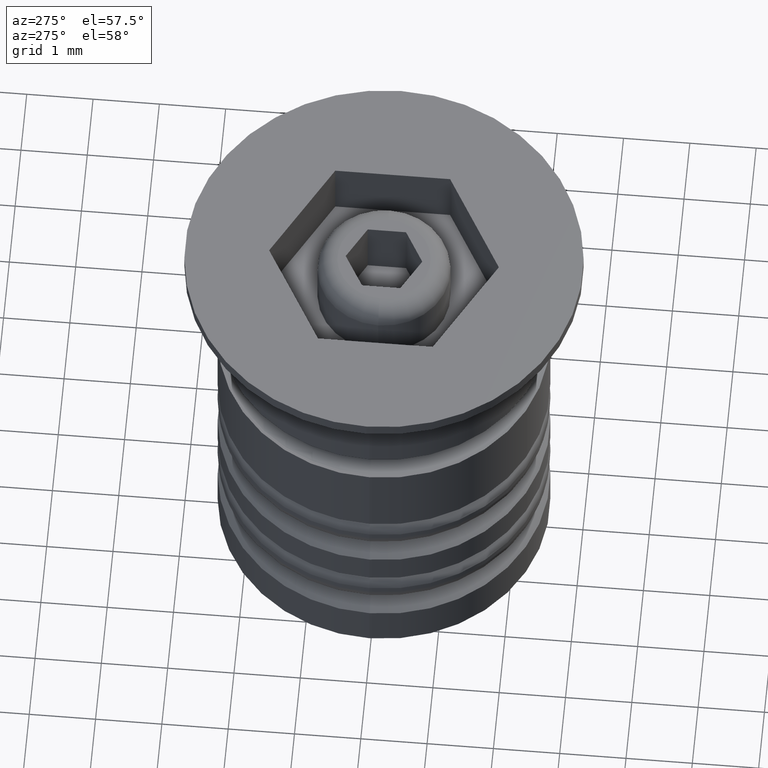
[diagram: clean part render]
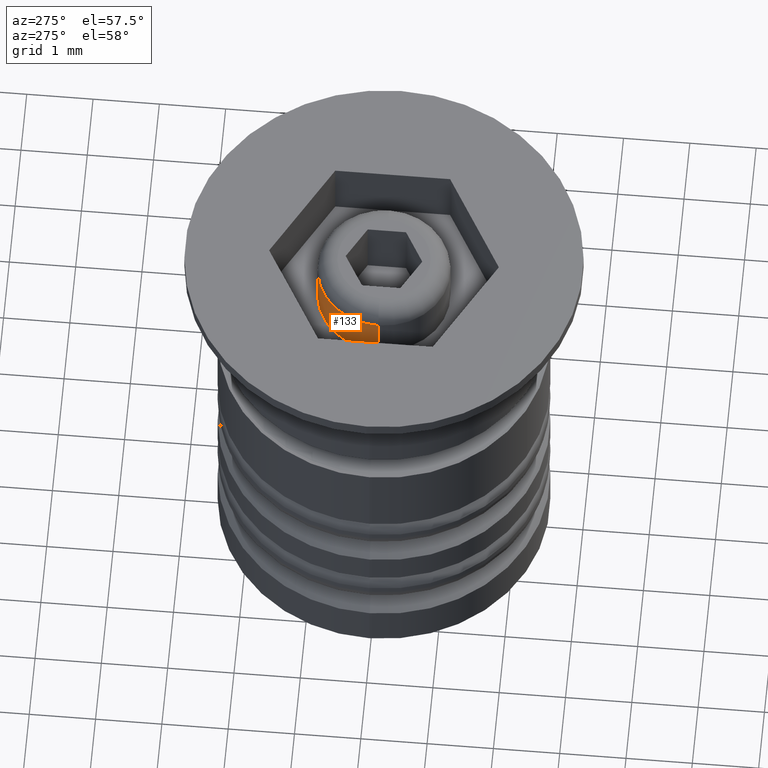
[diagram: same view with one face highlighted and labeled with its STEP entity id]
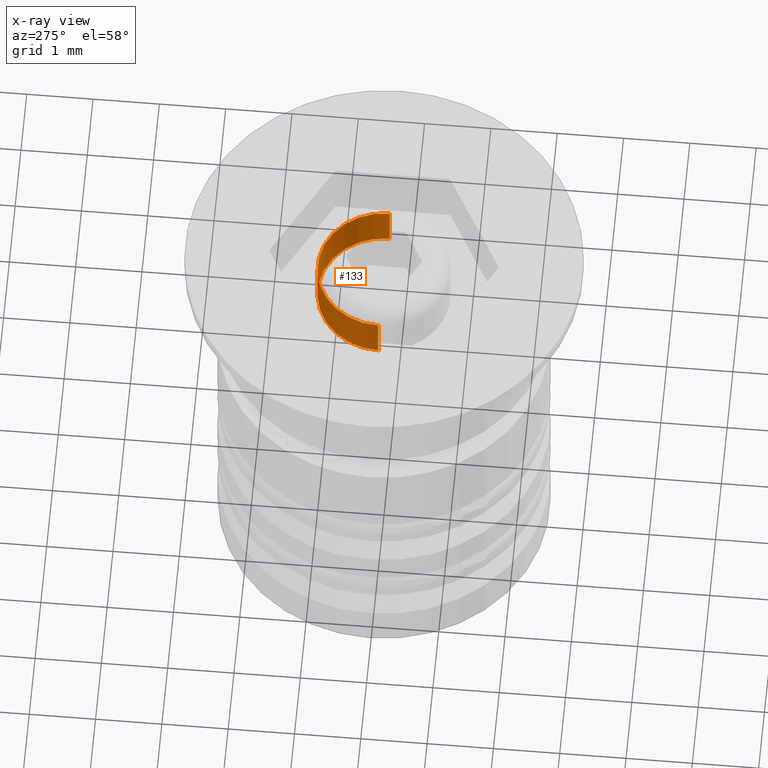
[diagram: x-ray of the same camera — body ghosted, the highlighted face saturated]
A machine part, auxiliary view. The second image highlights one B-rep face of the part: STEP entity #133.
The next image is the same camera in x-ray: the body ghosted, the highlighted face saturated — about 0% of this face is hidden behind the body in this view.
In plain terms, the highlighted cylindrical surface (partial cylindrical patch) has radius 1 mm, axis along (-0, -0, -1).
Its self-contained STEP definition (entity closure, byte-faithful):
#9 = AXIS2_PLACEMENT_3D ( 'NONE', #1321, #197, #1719 ) ;
#10 = VERTEX_POINT ( 'NONE', #1165 ) ;
#25 = EDGE_CURVE ( 'NONE', #10, #327, #808, .T. ) ;
#38 = CARTESIAN_POINT ( 'NONE',  ( -1.000000000000000666, 0.000000000000000000, 2.828427124746192067 ) ) ;
#133 = ADVANCED_FACE ( 'NONE', ( #1620 ), #790, .T. ) ;
#163 = EDGE_CURVE ( 'NONE', #839, #274, #1629, .T. ) ;
#197 = DIRECTION ( 'NONE',  ( 0.000000000000000000, 0.000000000000000000, 1.000000000000000000 ) ) ;
#261 = VECTOR ( 'NONE', #1031, 1000.000000000000000 ) ;
#274 = VERTEX_POINT ( 'NONE', #1269 ) ;
#290 = ORIENTED_EDGE ( 'NONE', *, *, #163, .T. ) ;
#292 = CARTESIAN_POINT ( 'NONE',  ( 1.000000000000000666, 1.224646799147353947E-16, 2.828427124746192067 ) ) ;
#327 = VERTEX_POINT ( 'NONE', #895 ) ;
#350 = EDGE_LOOP ( 'NONE', ( #290, #1176, #870, #1240 ) ) ;
#463 = LINE ( 'NONE', #38, #261 ) ;
#544 = LINE ( 'NONE', #292, #1122 ) ;
#671 = CARTESIAN_POINT ( 'NONE',  ( -1.000000000000000666, 0.000000000000000000, -0.3000000000000003775 ) ) ;
#692 = DIRECTION ( 'NONE',  ( 0.000000000000000000, 0.000000000000000000, -1.000000000000000000 ) ) ;
#696 = DIRECTION ( 'NONE',  ( -0.000000000000000000, -0.000000000000000000, -1.000000000000000000 ) ) ;
#712 = EDGE_CURVE ( 'NONE', #839, #327, #463, .T. ) ;
#790 = CYLINDRICAL_SURFACE ( 'NONE', #1047, 1.000000000000000666 ) ;
#808 = CIRCLE ( 'NONE', #9, 1.000000000000000666 ) ;
#839 = VERTEX_POINT ( 'NONE', #671 ) ;
#870 = ORIENTED_EDGE ( 'NONE', *, *, #25, .T. ) ;
#895 = CARTESIAN_POINT ( 'NONE',  ( -1.000000000000000666, 0.000000000000000000, -1.000000000000000000 ) ) ;
#939 = EDGE_CURVE ( 'NONE', #274, #10, #544, .T. ) ;
#1031 = DIRECTION ( 'NONE',  ( -0.000000000000000000, -0.000000000000000000, -1.000000000000000000 ) ) ;
#1047 = AXIS2_PLACEMENT_3D ( 'NONE', #1630, #1075, #1358 ) ;
#1075 = DIRECTION ( 'NONE',  ( -0.000000000000000000, -0.000000000000000000, -1.000000000000000000 ) ) ;
#1122 = VECTOR ( 'NONE', #696, 1000.000000000000000 ) ;
#1165 = CARTESIAN_POINT ( 'NONE',  ( 1.000000000000000666, 1.224646799147353947E-16, -1.000000000000000000 ) ) ;
#1176 = ORIENTED_EDGE ( 'NONE', *, *, #939, .T. ) ;
#1240 = ORIENTED_EDGE ( 'NONE', *, *, #712, .F. ) ;
#1269 = CARTESIAN_POINT ( 'NONE',  ( 1.000000000000000666, 1.224646799147353947E-16, -0.3000000000000003775 ) ) ;
#1321 = CARTESIAN_POINT ( 'NONE',  ( 0.000000000000000000, 0.000000000000000000, -1.000000000000000000 ) ) ;
#1358 = DIRECTION ( 'NONE',  ( -1.000000000000000000, 0.000000000000000000, 0.000000000000000000 ) ) ;
#1620 = FACE_OUTER_BOUND ( 'NONE', #350, .T. ) ;
#1629 = CIRCLE ( 'NONE', #1724, 1.000000000000000666 ) ;
#1630 = CARTESIAN_POINT ( 'NONE',  ( 0.000000000000000000, 0.000000000000000000, 2.828427124746192067 ) ) ;
#1683 = DIRECTION ( 'NONE',  ( 1.000000000000000000, 0.000000000000000000, 0.000000000000000000 ) ) ;
#1692 = CARTESIAN_POINT ( 'NONE',  ( 0.000000000000000000, 0.000000000000000000, -0.3000000000000003775 ) ) ;
#1719 = DIRECTION ( 'NONE',  ( 1.000000000000000000, 0.000000000000000000, 0.000000000000000000 ) ) ;
#1724 = AXIS2_PLACEMENT_3D ( 'NONE', #1692, #692, #1683 ) ;